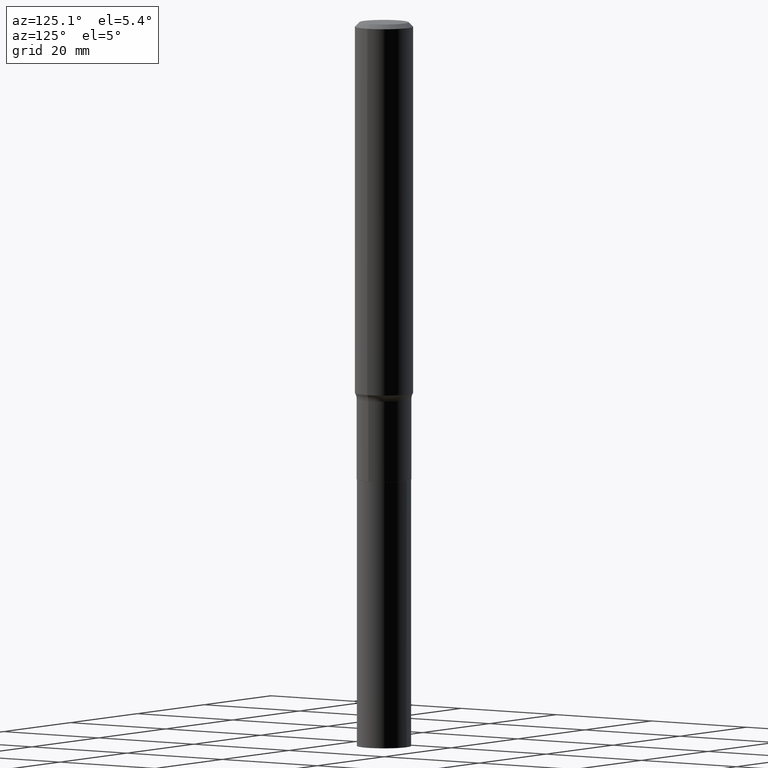
[diagram: clean part render]
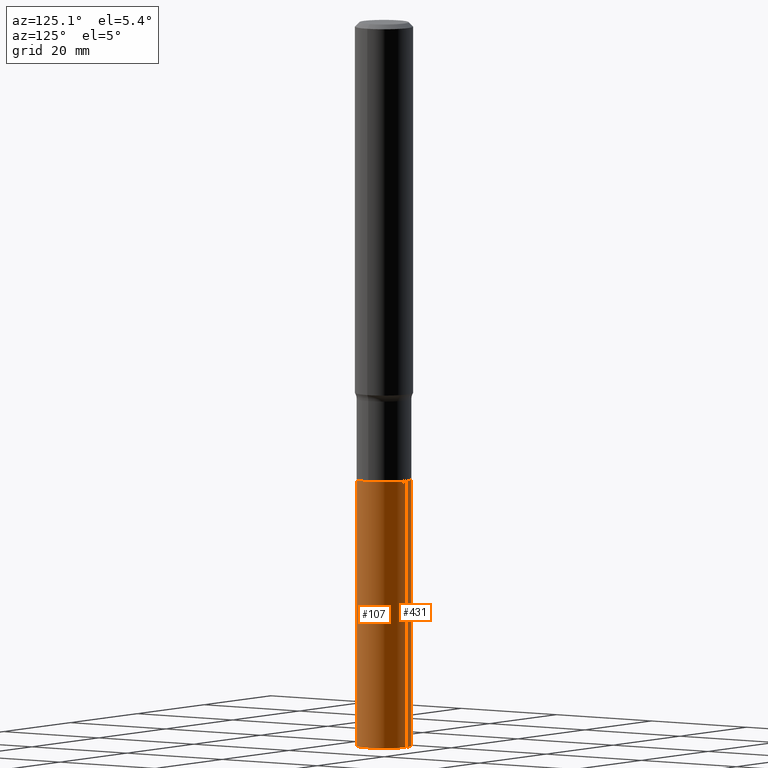
[diagram: same view with one multi-face feature highlighted, each face labeled with its STEP entity id]
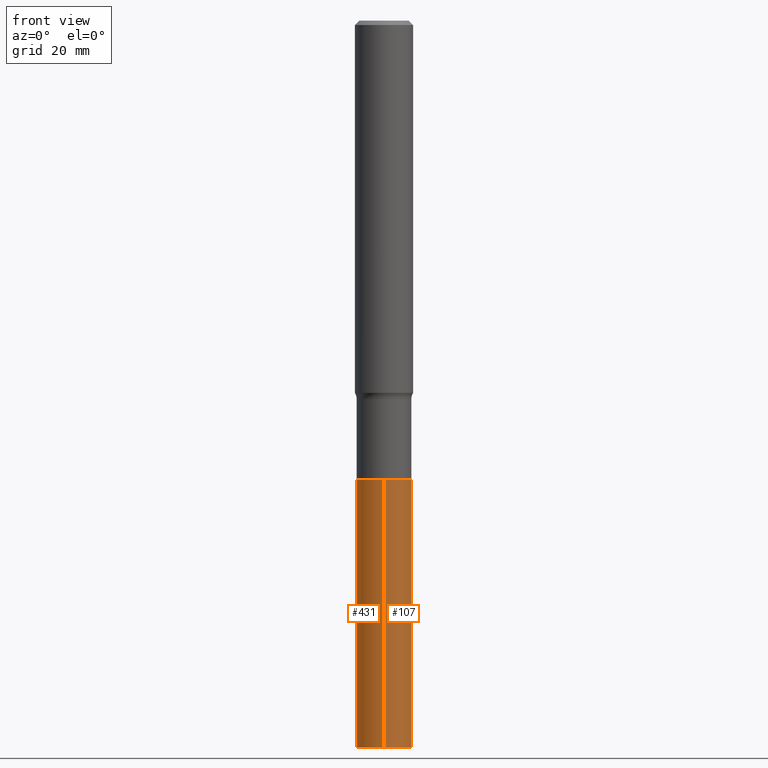
[diagram: same view with one multi-face feature highlighted, each face labeled with its STEP entity id]
A machine part, auxiliary view. The highlighted faces form ONE feature: a constant-radius fillet chain: 2 tangent blend faces with common blend radius 4.7003 mm. The faces share edges in the B-rep.
A second angle (front view) of the same feature is appended — it is thin or edge-on in the first view.
Their STEP definitions:
[1] entity #107 (Cylinder):
#27 = CARTESIAN_POINT ( 'NONE',  ( -1.292197243505767359E-15, -0.1850500000000108447, -3.110299999999999176 ) ) ;
#39 = DIRECTION ( 'NONE',  ( -2.445466098417616670E-29, 3.491485216520350654E-15, 1.000000000000000000 ) ) ;
#41 = AXIS2_PLACEMENT_3D ( 'NONE', #266, #345, #228 ) ;
#43 = EDGE_CURVE ( 'NONE', #409, #330, #428, .T. ) ;
#47 = AXIS2_PLACEMENT_3D ( 'NONE', #160, #39, #301 ) ;
#59 = LINE ( 'NONE', #212, #325 ) ;
#69 = ORIENTED_EDGE ( 'NONE', *, *, #131, .F. ) ;
#76 = CYLINDRICAL_SURFACE ( 'NONE', #41, 0.1850499999999999923 ) ;
#96 = DIRECTION ( 'NONE',  ( -6.982962677686265133E-15, -1.000000000000000000, 5.905102391060282712E-15 ) ) ;
#103 = FACE_OUTER_BOUND ( 'NONE', #334, .T. ) ;
#107 = ADVANCED_FACE ( 'NONE', ( #103 ), #76, .T. ) ;
#126 = DIRECTION ( 'NONE',  ( -2.445466098417616950E-29, 3.491485216520350654E-15, 1.000000000000000000 ) ) ;
#131 = EDGE_CURVE ( 'NONE', #185, #267, #298, .T. ) ;
#134 = EDGE_CURVE ( 'NONE', #409, #185, #439, .T. ) ;
#144 = ORIENTED_EDGE ( 'NONE', *, *, #134, .F. ) ;
#157 = ORIENTED_EDGE ( 'NONE', *, *, #43, .T. ) ;
#160 = CARTESIAN_POINT ( 'NONE',  ( 7.606141627877629779E-29, -1.085955440820383503E-14, -3.110300000000000065 ) ) ;
#182 = CARTESIAN_POINT ( 'NONE',  ( 1.203488073211193522E-28, -1.718263413532219501E-14, -4.921300000000000452 ) ) ;
#185 = VERTEX_POINT ( 'NONE', #27 ) ;
#212 = CARTESIAN_POINT ( 'NONE',  ( 1.314859332524141070E-15, 0.1850499999999891121, -3.110300000000000509 ) ) ;
#228 = DIRECTION ( 'NONE',  ( -6.982962677686265133E-15, -1.000000000000000000, 2.952551195530141356E-15 ) ) ;
#240 = VECTOR ( 'NONE', #126, 39.37007874015748143 ) ;
#242 = EDGE_CURVE ( 'NONE', #330, #267, #59, .T. ) ;
#266 = CARTESIAN_POINT ( 'NONE',  ( 7.606141627877629779E-29, -1.085955440820383503E-14, -3.110300000000000065 ) ) ;
#267 = VERTEX_POINT ( 'NONE', #422 ) ;
#287 = CARTESIAN_POINT ( 'NONE',  ( -1.292197243505722986E-15, -0.1850500000000171730, -4.921299999999999564 ) ) ;
#298 = CIRCLE ( 'NONE', #47, 0.1850499999999999923 ) ;
#301 = DIRECTION ( 'NONE',  ( -6.982962677686265133E-15, -1.000000000000000000, 2.952551195530141356E-15 ) ) ;
#306 = CARTESIAN_POINT ( 'NONE',  ( -1.292197243505767359E-15, -0.1850500000000108447, -3.110299999999999176 ) ) ;
#316 = DIRECTION ( 'NONE',  ( -2.445466098417616670E-29, 3.491485216520350654E-15, 1.000000000000000000 ) ) ;
#325 = VECTOR ( 'NONE', #459, 39.37007874015748143 ) ;
#330 = VERTEX_POINT ( 'NONE', #386 ) ;
#334 = EDGE_LOOP ( 'NONE', ( #157, #400, #69, #144 ) ) ;
#345 = DIRECTION ( 'NONE',  ( -2.445466098417616670E-29, 3.491485216520350654E-15, 1.000000000000000000 ) ) ;
#386 = CARTESIAN_POINT ( 'NONE',  ( 1.314859332524163355E-15, 0.1850499999999828116, -4.921300000000002228 ) ) ;
#400 = ORIENTED_EDGE ( 'NONE', *, *, #242, .T. ) ;
#409 = VERTEX_POINT ( 'NONE', #287 ) ;
#419 = AXIS2_PLACEMENT_3D ( 'NONE', #182, #316, #96 ) ;
#422 = CARTESIAN_POINT ( 'NONE',  ( 1.314859332524185443E-15, 0.1850499999999890843, -3.110300000000000509 ) ) ;
#428 = CIRCLE ( 'NONE', #419, 0.1850499999999999923 ) ;
#439 = LINE ( 'NONE', #306, #240 ) ;
#459 = DIRECTION ( 'NONE',  ( -2.445466098417616950E-29, 3.491485216520350654E-15, 1.000000000000000000 ) ) ;
[2] entity #431 (Cylinder):
#20 = DIRECTION ( 'NONE',  ( -2.445466098417616670E-29, 3.491485216520350654E-15, 1.000000000000000000 ) ) ;
#23 = DIRECTION ( 'NONE',  ( -6.982962677686265133E-15, -1.000000000000000000, 5.905102391060282712E-15 ) ) ;
#27 = CARTESIAN_POINT ( 'NONE',  ( -1.292197243505767359E-15, -0.1850500000000108447, -3.110299999999999176 ) ) ;
#29 = FACE_OUTER_BOUND ( 'NONE', #77, .T. ) ;
#59 = LINE ( 'NONE', #212, #325 ) ;
#77 = EDGE_LOOP ( 'NONE', ( #320, #232, #229, #198 ) ) ;
#119 = AXIS2_PLACEMENT_3D ( 'NONE', #464, #454, #133 ) ;
#126 = DIRECTION ( 'NONE',  ( -2.445466098417616950E-29, 3.491485216520350654E-15, 1.000000000000000000 ) ) ;
#133 = DIRECTION ( 'NONE',  ( -6.982962677686265133E-15, -1.000000000000000000, 2.952551195530141356E-15 ) ) ;
#134 = EDGE_CURVE ( 'NONE', #409, #185, #439, .T. ) ;
#175 = DIRECTION ( 'NONE',  ( -6.982962677686265133E-15, -1.000000000000000000, 2.952551195530141356E-15 ) ) ;
#185 = VERTEX_POINT ( 'NONE', #27 ) ;
#198 = ORIENTED_EDGE ( 'NONE', *, *, #258, .F. ) ;
#203 = CIRCLE ( 'NONE', #381, 0.1850499999999999923 ) ;
#212 = CARTESIAN_POINT ( 'NONE',  ( 1.314859332524141070E-15, 0.1850499999999891121, -3.110300000000000509 ) ) ;
#215 = CYLINDRICAL_SURFACE ( 'NONE', #119, 0.1850499999999999923 ) ;
#229 = ORIENTED_EDGE ( 'NONE', *, *, #134, .T. ) ;
#232 = ORIENTED_EDGE ( 'NONE', *, *, #378, .T. ) ;
#234 = CIRCLE ( 'NONE', #421, 0.1850499999999999923 ) ;
#240 = VECTOR ( 'NONE', #126, 39.37007874015748143 ) ;
#242 = EDGE_CURVE ( 'NONE', #330, #267, #59, .T. ) ;
#252 = CARTESIAN_POINT ( 'NONE',  ( 1.203488073211193522E-28, -1.718263413532219501E-14, -4.921300000000000452 ) ) ;
#258 = EDGE_CURVE ( 'NONE', #267, #185, #234, .T. ) ;
#267 = VERTEX_POINT ( 'NONE', #422 ) ;
#287 = CARTESIAN_POINT ( 'NONE',  ( -1.292197243505722986E-15, -0.1850500000000171730, -4.921299999999999564 ) ) ;
#306 = CARTESIAN_POINT ( 'NONE',  ( -1.292197243505767359E-15, -0.1850500000000108447, -3.110299999999999176 ) ) ;
#320 = ORIENTED_EDGE ( 'NONE', *, *, #242, .F. ) ;
#325 = VECTOR ( 'NONE', #459, 39.37007874015748143 ) ;
#330 = VERTEX_POINT ( 'NONE', #386 ) ;
#362 = CARTESIAN_POINT ( 'NONE',  ( 7.606141627877629779E-29, -1.085955440820383503E-14, -3.110300000000000065 ) ) ;
#378 = EDGE_CURVE ( 'NONE', #330, #409, #203, .T. ) ;
#381 = AXIS2_PLACEMENT_3D ( 'NONE', #252, #20, #23 ) ;
#386 = CARTESIAN_POINT ( 'NONE',  ( 1.314859332524163355E-15, 0.1850499999999828116, -4.921300000000002228 ) ) ;
#409 = VERTEX_POINT ( 'NONE', #287 ) ;
#421 = AXIS2_PLACEMENT_3D ( 'NONE', #362, #456, #175 ) ;
#422 = CARTESIAN_POINT ( 'NONE',  ( 1.314859332524185443E-15, 0.1850499999999890843, -3.110300000000000509 ) ) ;
#431 = ADVANCED_FACE ( 'NONE', ( #29 ), #215, .T. ) ;
#439 = LINE ( 'NONE', #306, #240 ) ;
#454 = DIRECTION ( 'NONE',  ( -2.445466098417616670E-29, 3.491485216520350654E-15, 1.000000000000000000 ) ) ;
#456 = DIRECTION ( 'NONE',  ( -2.445466098417616670E-29, 3.491485216520350654E-15, 1.000000000000000000 ) ) ;
#459 = DIRECTION ( 'NONE',  ( -2.445466098417616950E-29, 3.491485216520350654E-15, 1.000000000000000000 ) ) ;
#464 = CARTESIAN_POINT ( 'NONE',  ( 7.606141627877629779E-29, -1.085955440820383503E-14, -3.110300000000000065 ) ) ;